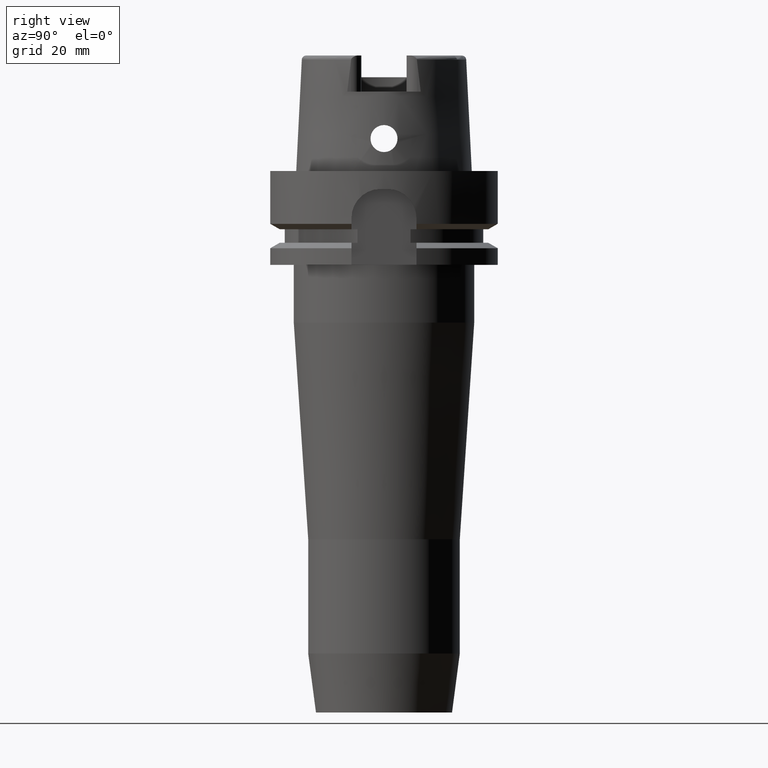
[diagram: clean part render]
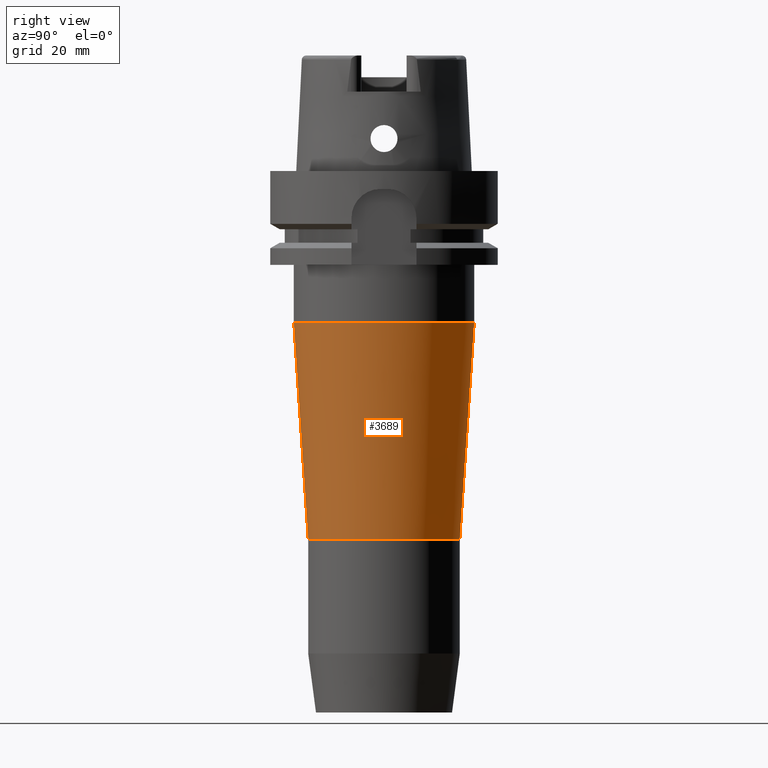
[diagram: same view with one face highlighted and labeled with its STEP entity id]
A machine part, right view. The second image highlights one B-rep face of the part: STEP entity #3689.
In plain terms, the highlighted conical surface has half-angle 3.814 deg.
Its self-contained STEP definition (entity closure, byte-faithful):
#1623=DIRECTION('',(0.E0,-6.651770731179E-2,-9.977852447366E-1));
#1624=VECTOR('',#1623,6.013436364019E1);
#1625=CARTESIAN_POINT('',(0.E0,2.5E1,-4.2E1));
#1626=LINE('',#1625,#1624);
#1630=CARTESIAN_POINT('',(0.E0,0.E0,-1.020011807418E2));
#1631=DIRECTION('',(0.E0,0.E0,-1.E0));
#1632=DIRECTION('',(0.E0,1.E0,0.E0));
#1633=AXIS2_PLACEMENT_3D('',#1630,#1631,#1632);
#1638=CARTESIAN_POINT('',(0.E0,0.E0,-4.2E1));
#1639=DIRECTION('',(0.E0,0.E0,1.E0));
#1640=DIRECTION('',(0.E0,-1.E0,0.E0));
#1641=AXIS2_PLACEMENT_3D('',#1638,#1639,#1640);
#1654=DIRECTION('',(0.E0,6.651770731179E-2,-9.977852447366E-1));
#1655=VECTOR('',#1654,6.013436364019E1);
#1656=CARTESIAN_POINT('',(0.E0,-2.5E1,-4.2E1));
#1657=LINE('',#1656,#1655);
#2438=CARTESIAN_POINT('',(0.E0,2.1E1,-1.020011807418E2));
#2439=VERTEX_POINT('',#2438);
#2440=CARTESIAN_POINT('',(0.E0,-2.1E1,-1.020011807418E2));
#2441=VERTEX_POINT('',#2440);
#2442=CARTESIAN_POINT('',(0.E0,2.5E1,-4.2E1));
#2443=VERTEX_POINT('',#2442);
#2444=CARTESIAN_POINT('',(0.E0,-2.5E1,-4.2E1));
#2445=VERTEX_POINT('',#2444);
#3675=CARTESIAN_POINT('',(0.E0,0.E0,-7.200059037090E1));
#3676=DIRECTION('',(0.E0,0.E0,1.E0));
#3677=DIRECTION('',(0.E0,1.E0,0.E0));
#3678=AXIS2_PLACEMENT_3D('',#3675,#3676,#3677);
#3679=CONICAL_SURFACE('',#3678,2.3E1,3.814E0);
#3681=ORIENTED_EDGE('',*,*,#3680,.T.);
#3683=ORIENTED_EDGE('',*,*,#3682,.T.);
#3685=ORIENTED_EDGE('',*,*,#3684,.F.);
#3686=ORIENTED_EDGE('',*,*,#3668,.T.);
#3687=EDGE_LOOP('',(#3681,#3683,#3685,#3686));
#3688=FACE_OUTER_BOUND('',#3687,.F.);
#1634=CIRCLE('',#1633,2.1E1);
#1642=CIRCLE('',#1641,2.5E1);
#3668=EDGE_CURVE('',#2445,#2443,#1642,.T.);
#3680=EDGE_CURVE('',#2443,#2439,#1626,.T.);
#3682=EDGE_CURVE('',#2439,#2441,#1634,.T.);
#3684=EDGE_CURVE('',#2445,#2441,#1657,.T.);
#3689=ADVANCED_FACE('',(#3688),#3679,.T.);